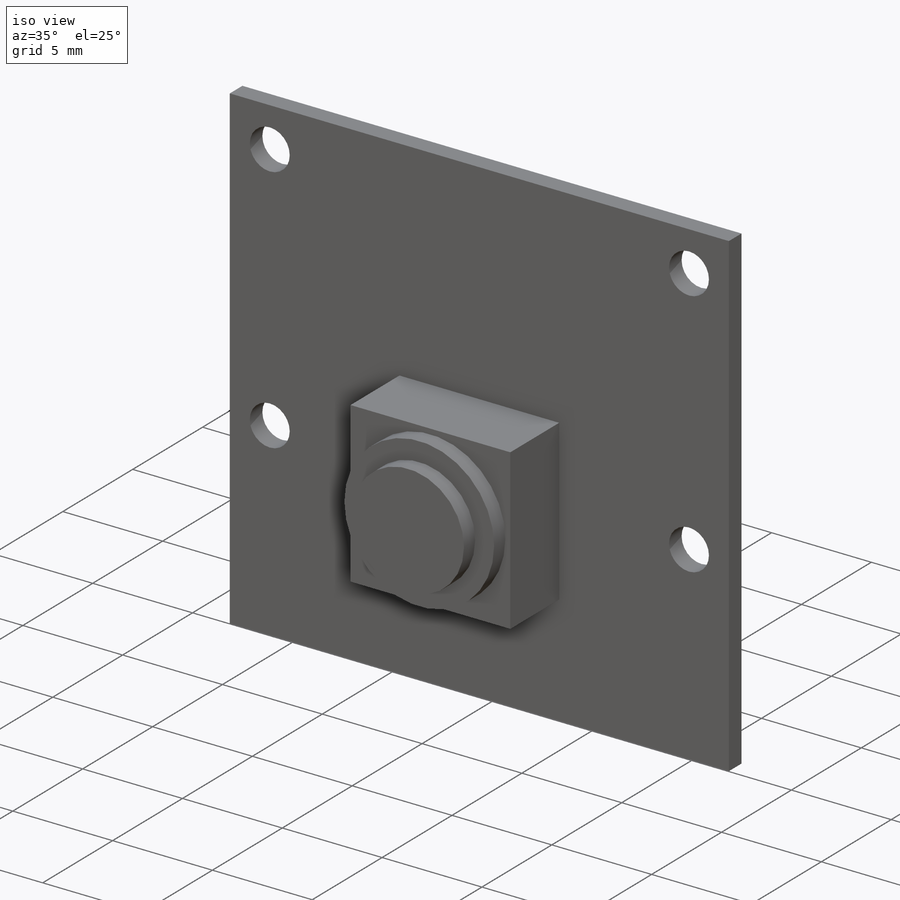
[diagram: iso view]
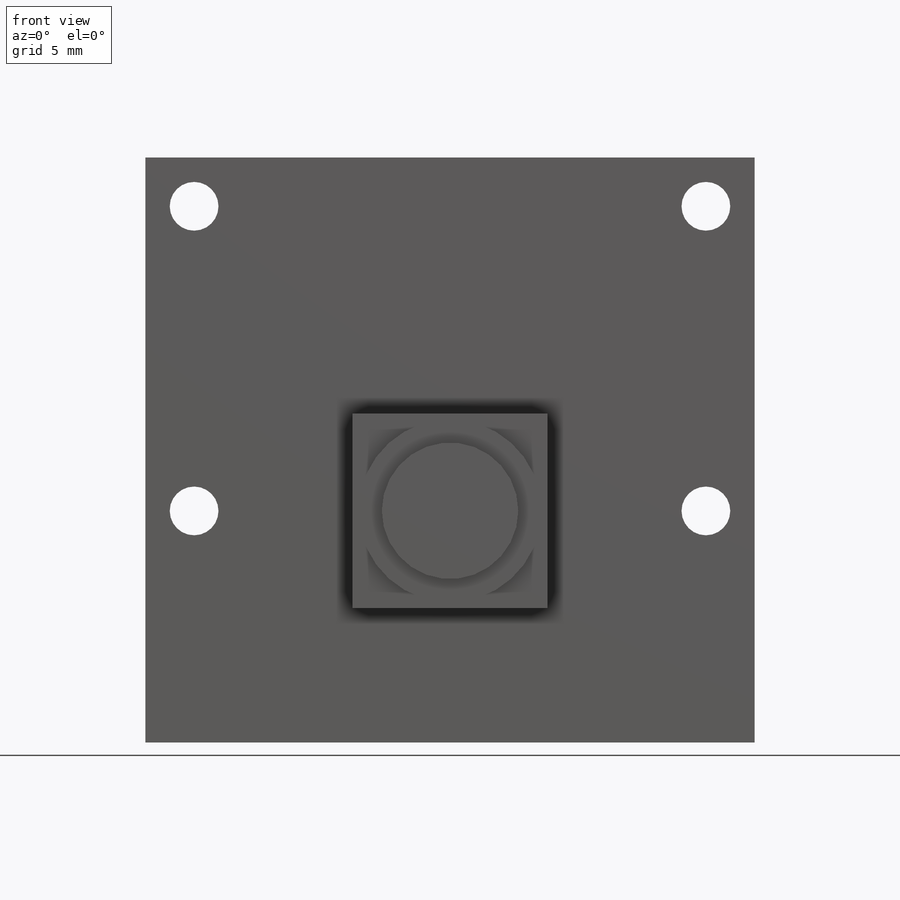
[diagram: front view]
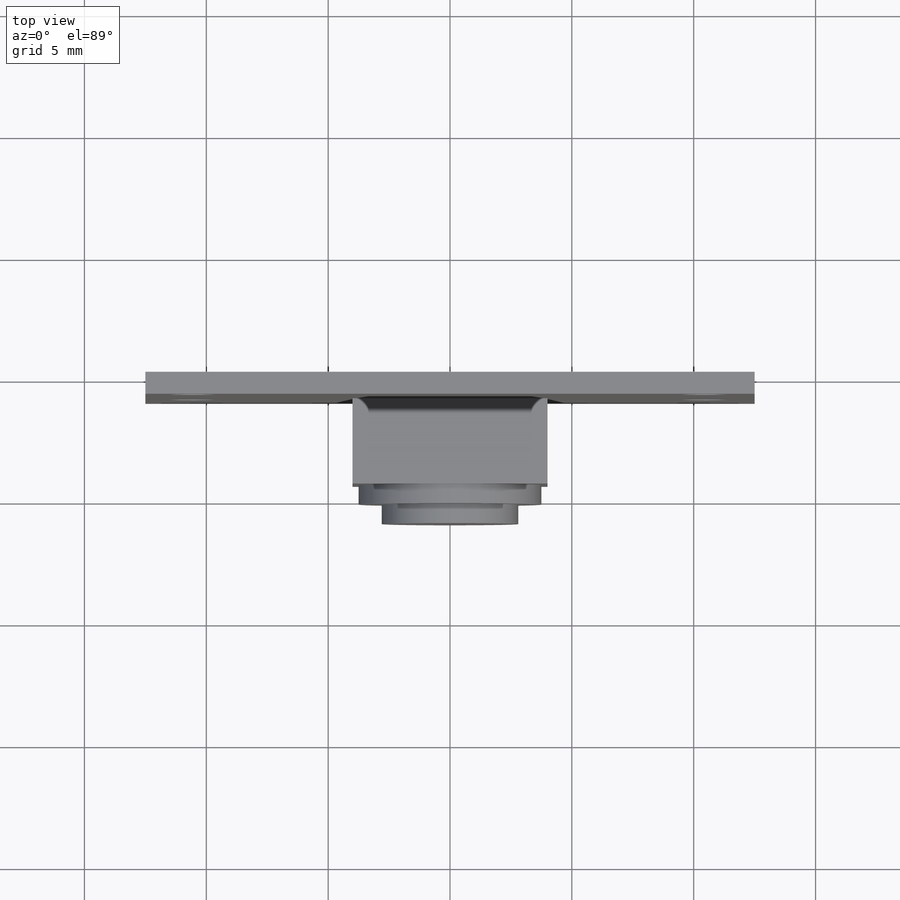
[diagram: top view]
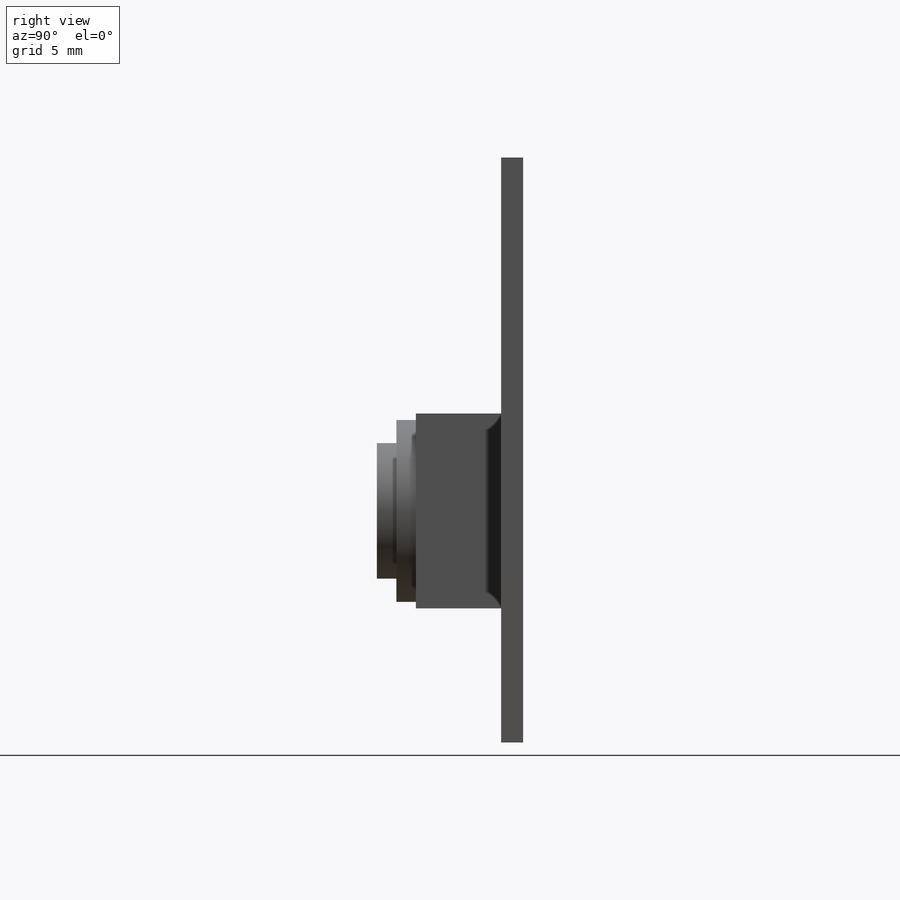
[diagram: right view]
SOLIDWORKS PART (.sldprt)
format: sldprt  version: not decoded by parser v0  size: 167,936 bytes
history: native  units: mm
features: sketch x4, extrude x4, plane x3, material x1 (+13 scaffold rows collapsed)
feature tree (25):
  scaffold x13  (default folders/planes/origin — collapsed)
  material  "Material <sin especificar>"
  plane  "Alzado"
  plane  "Planta"
  plane  "Vista lateral"
  sketch  "Croquis1"  dims[D6=2.0mm D1=25.0mm D2=24.0mm D3=21.0mm D4=12.5mm D5=2.0mm]
  extrude  "Saliente-Extruir1"  Depth=0.9mm
  sketch  "Croquis2"  dims[D1=8.0mm D2=5.5mm]
  extrude  "Saliente-Extruir2"  Depth=3.5mm
  sketch  "Croquis3"  dims[D1=7.5mm]
  extrude  "Saliente-Extruir3"  Depth=0.8mm
  sketch  "Croquis4"  dims[D1=5.6mm]
  extrude  "Saliente-Extruir4"  Depth=0.8mm
decode coverage: 8 of 8 modeling features carry decoded parameters
note: suppression state not decoded; provenance and decode notes live in map.json
